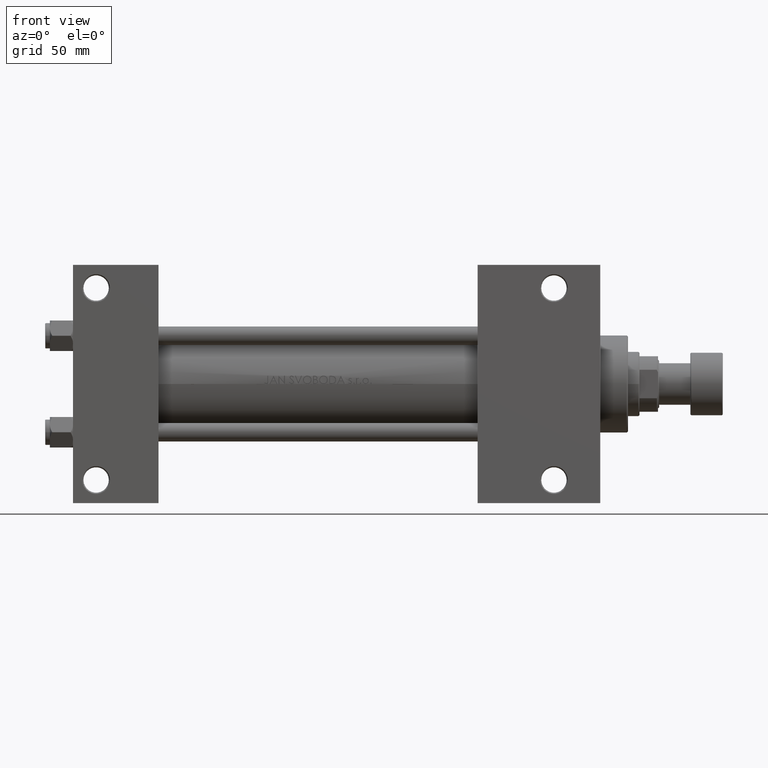
[diagram: clean part render]
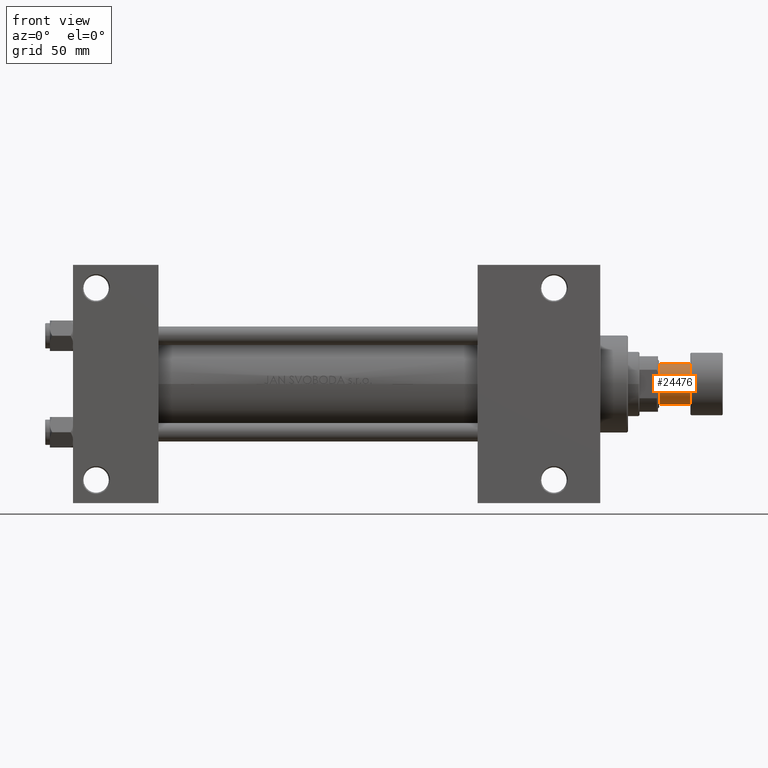
[diagram: same view with one face highlighted and labeled with its STEP entity id]
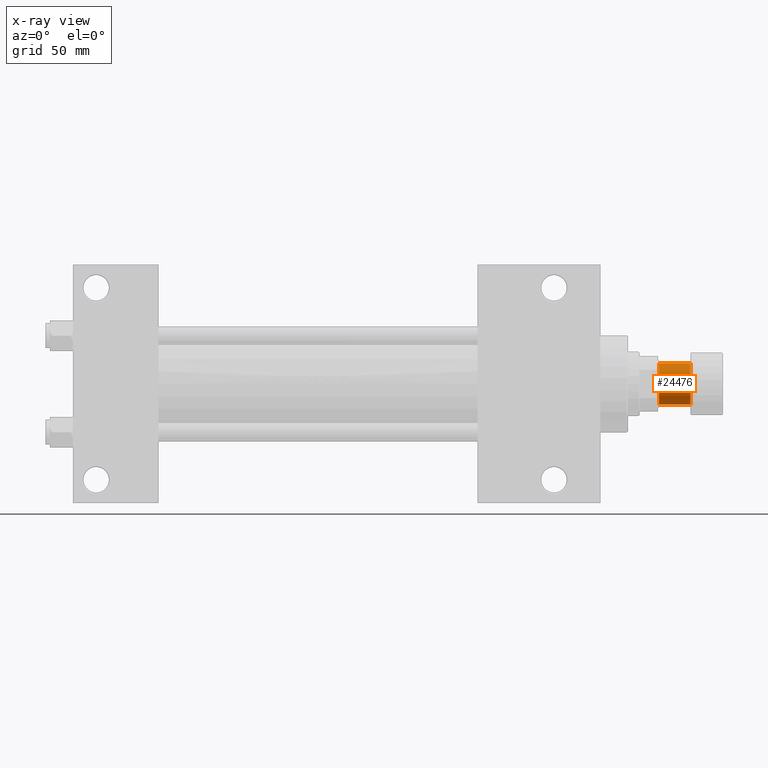
[diagram: x-ray of the same camera — body ghosted, the highlighted face saturated]
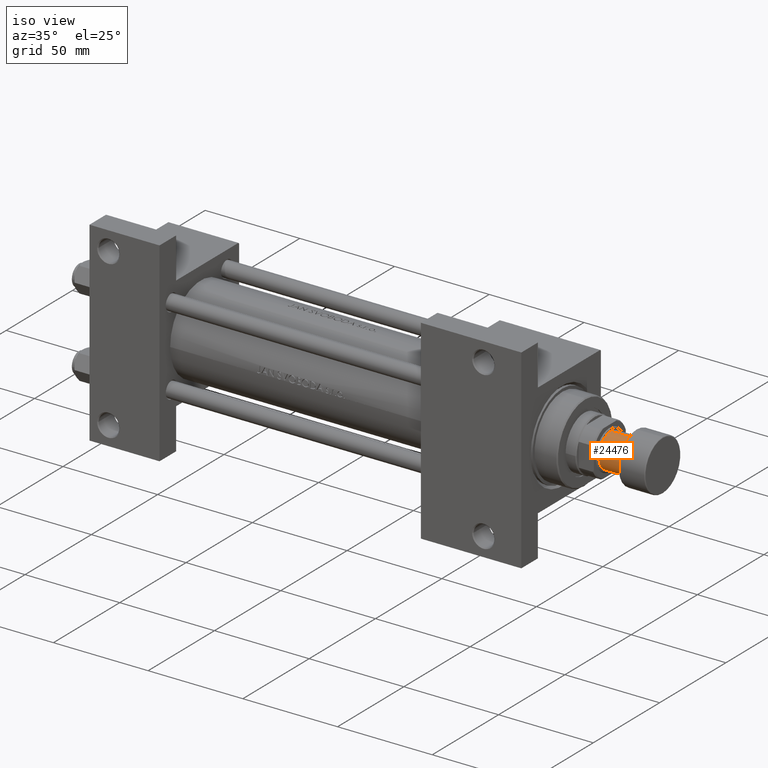
[diagram: same view with one face highlighted and labeled with its STEP entity id]
A machine part, front view. The second image highlights one B-rep face of the part: STEP entity #24476.
The next image is the same camera in x-ray: the body ghosted, the highlighted face saturated — about 0% of this face is hidden behind the body in this view.
A second angle (iso view) of the same face is appended — the face is thin or edge-on in the first view.
In plain terms, the highlighted cylindrical surface (edge-blend (fillet) strip) has radius 9 mm, axis along (1, 0, 0).
Its self-contained STEP definition (entity closure, byte-faithful):
#2805 = DIRECTION ( 'NONE',  ( -0.000000000000000000, -0.000000000000000000, 1.000000000000000000 ) ) ;
#7094 = LINE ( 'NONE', #32157, #43093 ) ;
#7947 = EDGE_CURVE ( 'NONE', #45743, #24907, #16859, .T. ) ;
#8273 = DIRECTION ( 'NONE',  ( 0.000000000000000000, 0.000000000000000000, -1.000000000000000000 ) ) ;
#8448 = CARTESIAN_POINT ( 'NONE',  ( -9.000000000000000000, 1.102182119232617714E-15, -14.00000000000000000 ) ) ;
#10511 = DIRECTION ( 'NONE',  ( 0.000000000000000000, 0.000000000000000000, -1.000000000000000000 ) ) ;
#12024 = EDGE_CURVE ( 'NONE', #25000, #27868, #43267, .T. ) ;
#12231 = ORIENTED_EDGE ( 'NONE', *, *, #7947, .F. ) ;
#16859 = CIRCLE ( 'NONE', #29273, 9.000000000000000000 ) ;
#17660 = ORIENTED_EDGE ( 'NONE', *, *, #31373, .T. ) ;
#23826 = CARTESIAN_POINT ( 'NONE',  ( -9.000000000000000000, 1.102182119232617714E-15, -27.50000000000000000 ) ) ;
#24476 = ADVANCED_FACE ( 'NONE', ( #43641 ), #44365, .T. ) ;
#24907 = VERTEX_POINT ( 'NONE', #23826 ) ;
#25000 = VERTEX_POINT ( 'NONE', #28885 ) ;
#25171 = CARTESIAN_POINT ( 'NONE',  ( 0.000000000000000000, 0.000000000000000000, -27.50000000000000000 ) ) ;
#25415 = DIRECTION ( 'NONE',  ( 1.000000000000000000, 0.000000000000000000, 0.000000000000000000 ) ) ;
#25627 = EDGE_CURVE ( 'NONE', #24907, #27868, #7094, .T. ) ;
#25836 = CARTESIAN_POINT ( 'NONE',  ( 0.000000000000000000, 0.000000000000000000, -14.00000000000000000 ) ) ;
#27488 = LINE ( 'NONE', #43282, #47033 ) ;
#27868 = VERTEX_POINT ( 'NONE', #8448 ) ;
#28885 = CARTESIAN_POINT ( 'NONE',  ( 9.000000000000000000, 0.000000000000000000, -14.00000000000000000 ) ) ;
#29273 = AXIS2_PLACEMENT_3D ( 'NONE', #29917, #8273, #41342 ) ;
#29917 = CARTESIAN_POINT ( 'NONE',  ( 0.000000000000000000, 0.000000000000000000, -27.50000000000000000 ) ) ;
#31373 = EDGE_CURVE ( 'NONE', #45743, #25000, #27488, .T. ) ;
#31702 = CARTESIAN_POINT ( 'NONE',  ( 9.000000000000000000, 0.000000000000000000, -27.50000000000000000 ) ) ;
#31749 = ORIENTED_EDGE ( 'NONE', *, *, #25627, .F. ) ;
#32157 = CARTESIAN_POINT ( 'NONE',  ( -9.000000000000000000, 1.102182119232617714E-15, -27.50000000000000000 ) ) ;
#33814 = ORIENTED_EDGE ( 'NONE', *, *, #12024, .T. ) ;
#36829 = AXIS2_PLACEMENT_3D ( 'NONE', #25171, #2805, #25415 ) ;
#36928 = EDGE_LOOP ( 'NONE', ( #31749, #12231, #17660, #33814 ) ) ;
#38576 = AXIS2_PLACEMENT_3D ( 'NONE', #25836, #10511, #47959 ) ;
#39930 = DIRECTION ( 'NONE',  ( -0.000000000000000000, -0.000000000000000000, 1.000000000000000000 ) ) ;
#41342 = DIRECTION ( 'NONE',  ( -1.000000000000000000, 0.000000000000000000, 0.000000000000000000 ) ) ;
#43093 = VECTOR ( 'NONE', #39930, 1000.000000000000000 ) ;
#43267 = CIRCLE ( 'NONE', #38576, 9.000000000000000000 ) ;
#43282 = CARTESIAN_POINT ( 'NONE',  ( 9.000000000000000000, 0.000000000000000000, -27.50000000000000000 ) ) ;
#43641 = FACE_OUTER_BOUND ( 'NONE', #36928, .T. ) ;
#44365 = CYLINDRICAL_SURFACE ( 'NONE', #36829, 9.000000000000000000 ) ;
#45743 = VERTEX_POINT ( 'NONE', #31702 ) ;
#46923 = DIRECTION ( 'NONE',  ( -0.000000000000000000, -0.000000000000000000, 1.000000000000000000 ) ) ;
#47033 = VECTOR ( 'NONE', #46923, 1000.000000000000000 ) ;
#47959 = DIRECTION ( 'NONE',  ( -1.000000000000000000, 0.000000000000000000, 0.000000000000000000 ) ) ;